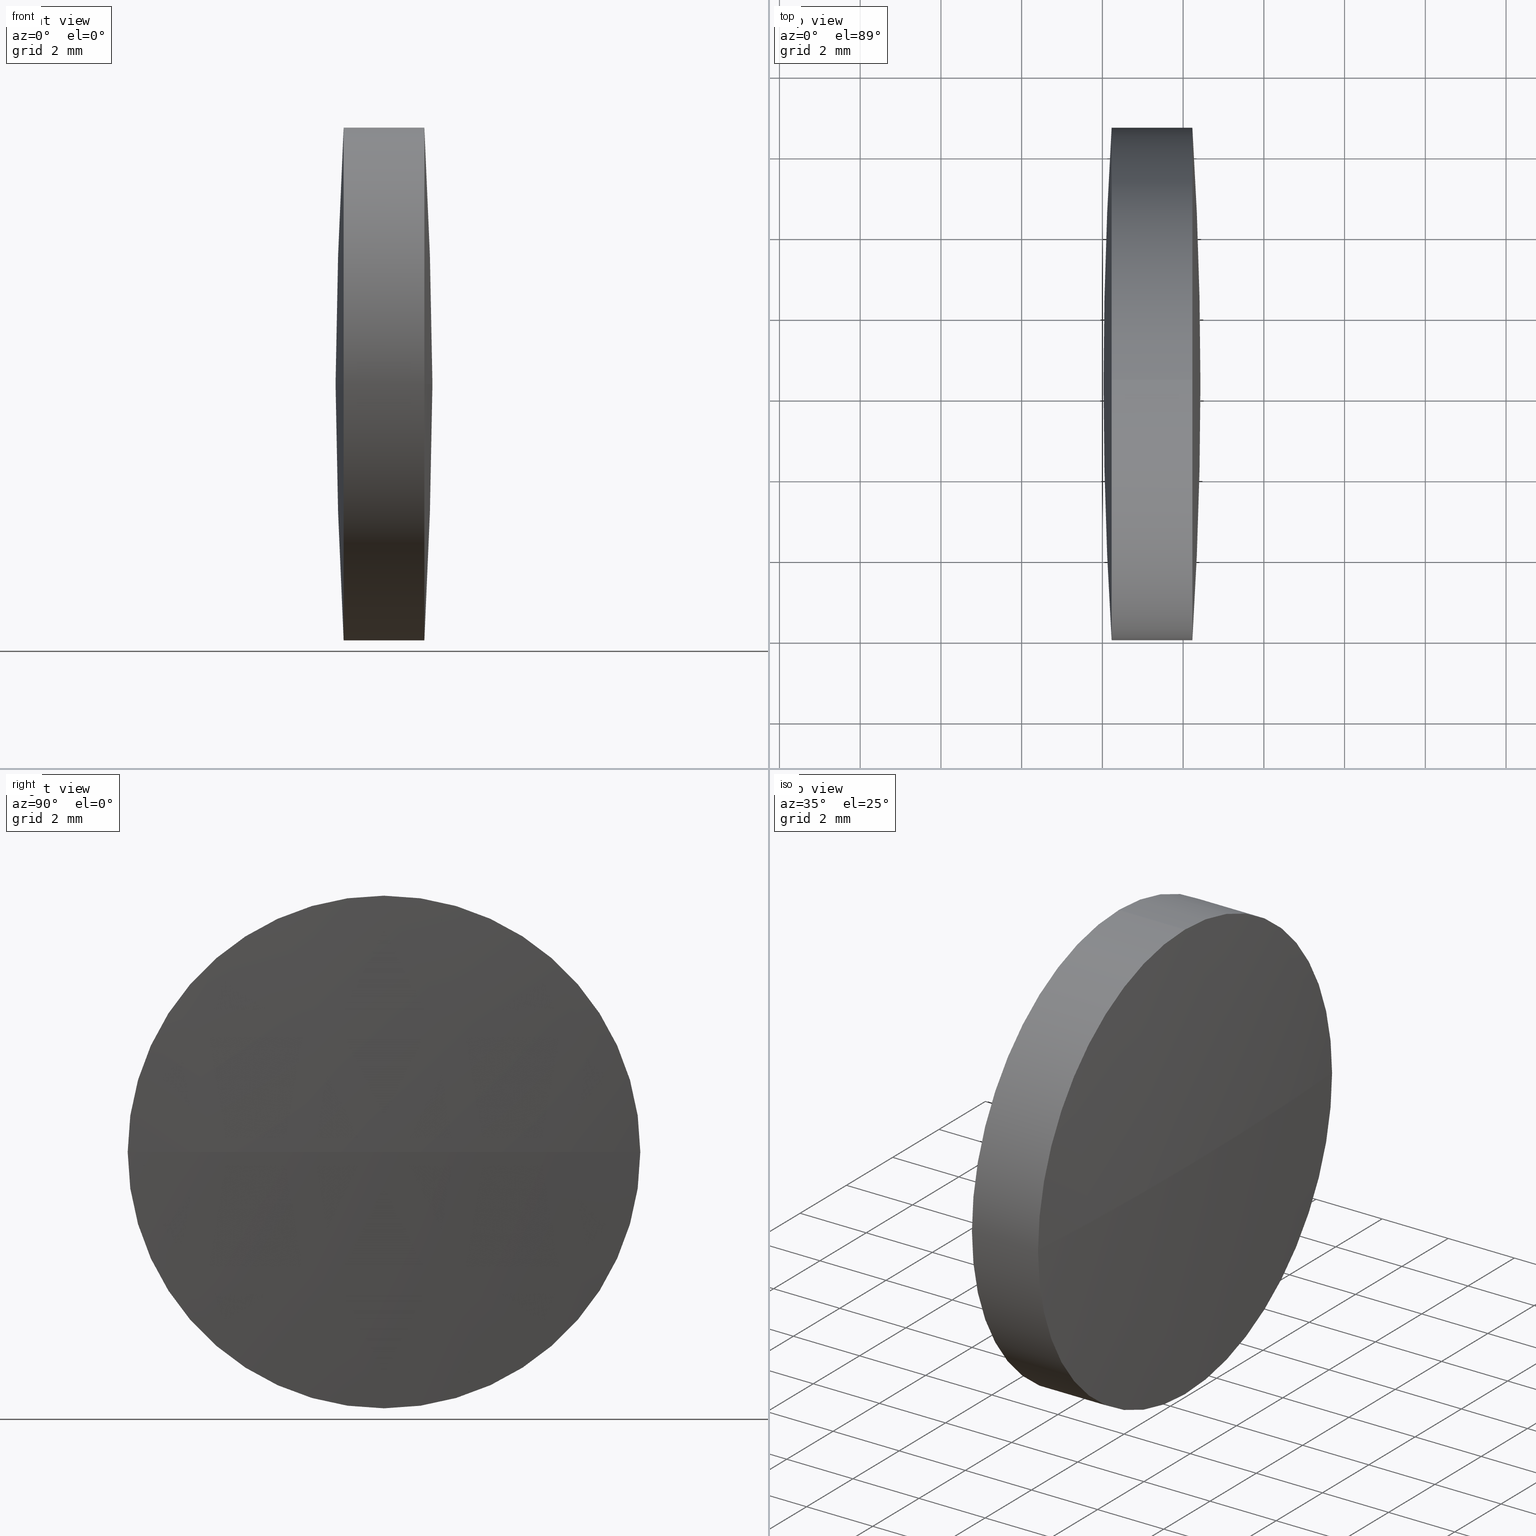
[diagram: canonical four-view strip — front | top / right | iso, engineering-drawing reading convention]
A machine part, canonical four-view strip (front | top / right | iso — engineering-drawing reading convention). The complete STEP part file that produces these views, byte-faithful:
ISO-10303-21;
HEADER;
FILE_DESCRIPTION (( 'STEP AP203' ),
    '1' );
FILE_NAME ('110154.STEP',
    '2019-07-09T01:43:57',
    ( '' ),
    ( '' ),
    'SwSTEP 2.0',
    'SolidWorks 2016',
    '' );
FILE_SCHEMA (( 'CONFIG_CONTROL_DESIGN' ));
ENDSEC;

DATA;
#1 = CC_DESIGN_DATE_AND_TIME_ASSIGNMENT ( #302, #37, ( #254 ) ) ;
#2 = ORIENTED_EDGE ( 'NONE', *, *, #91, .T. ) ;
#3 = DATE_TIME_ROLE ( 'classification_date' ) ;
#4 = PERSON_AND_ORGANIZATION ( #185, #274 ) ;
#5 = APPROVAL_DATE_TIME ( #36, #202 ) ;
#6 = PERSON_AND_ORGANIZATION_ROLE ( 'design_supplier' ) ;
#7 = AXIS2_PLACEMENT_3D ( 'NONE', #161, #297, #135 ) ;
#8 = SECURITY_CLASSIFICATION_LEVEL ( 'unclassified' ) ;
#9 = CC_DESIGN_APPROVAL ( #178, ( #320 ) ) ;
#10 = FACE_OUTER_BOUND ( 'NONE', #33, .T. ) ;
#11 = ORIENTED_EDGE ( 'NONE', *, *, #39, .F. ) ;
#12 = COORDINATED_UNIVERSAL_TIME_OFFSET ( 8, 0, .AHEAD. ) ;
#13 = COORDINATED_UNIVERSAL_TIME_OFFSET ( 8, 0, .AHEAD. ) ;
#14 = VERTEX_POINT ( 'NONE', #288 ) ;
#15 = DATE_AND_TIME ( #83, #305 ) ;
#16 = CARTESIAN_POINT ( 'NONE',  ( 42.22906260161698100, 24.30805651159239000, 6.349999999999997900 ) ) ;
#17 = LOCAL_TIME ( 9, 43, 57.00000000000000000, #217 ) ;
#18 = CALENDAR_DATE ( 2019, 9, 7 ) ;
#19 = VERTEX_POINT ( 'NONE', #55 ) ;
#20 = CARTESIAN_POINT ( 'NONE',  ( 44.22913117304555200, 30.65805651159237000, 7.776507174585586700E-016 ) ) ;
#21 = AXIS2_PLACEMENT_3D ( 'NONE', #295, #76, #160 ) ;
#22 = DIRECTION ( 'NONE',  ( 0.0000000000000000000, -1.000000000000000000, -1.224646799147353200E-016 ) ) ;
#23 = DIRECTION ( 'NONE',  ( 0.0000000000000000000, 0.0000000000000000000, 1.000000000000000000 ) ) ;
#24 = DIRECTION ( 'NONE',  ( -1.000000000000000000, -0.0000000000000000000, -0.0000000000000000000 ) ) ;
#25 = CC_DESIGN_APPROVAL ( #310, ( #114 ) ) ;
#26 = CARTESIAN_POINT ( 'NONE',  ( 0.0000000000000000000, 0.0000000000000000000, 0.0000000000000000000 ) ) ;
#27 = DIRECTION ( 'NONE',  ( -1.000000000000000000, -0.0000000000000000000, -0.0000000000000000000 ) ) ;
#28 = FACE_OUTER_BOUND ( 'NONE', #315, .T. ) ;
#29 = EDGE_CURVE ( 'NONE', #307, #259, #141, .T. ) ;
#30 = ADVANCED_BREP_SHAPE_REPRESENTATION ( '110154', ( #220, #296 ), #171 ) ;
#31 = APPROVAL_ROLE ( '' ) ;
#32 = APPROVAL_DATE_TIME ( #229, #65 ) ;
#33 = EDGE_LOOP ( 'NONE', ( #79, #96, #231, #329 ) ) ;
#34 = PERSON_AND_ORGANIZATION_ROLE ( 'design_supplier' ) ;
#35 = APPROVAL_DATE_TIME ( #61, #178 ) ;
#36 = DATE_AND_TIME ( #18, #168 ) ;
#37 = DATE_TIME_ROLE ( 'creation_date' ) ;
#38 = UNCERTAINTY_MEASURE_WITH_UNIT (LENGTH_MEASURE( 1.000000000000000100E-005 ), #223, 'distance_accuracy_value', 'NONE');
#39 = EDGE_CURVE ( 'NONE', #140, #50, #97, .T. ) ;
#40 = LOCAL_TIME ( 9, 43, 57.00000000000000000, #277 ) ;
#41 = LOCAL_TIME ( 9, 43, 57.00000000000000000, #283 ) ;
#42 = CALENDAR_DATE ( 2019, 9, 7 ) ;
#43 = ORIENTED_EDGE ( 'NONE', *, *, #91, .F. ) ;
#44 = ADVANCED_FACE ( 'NONE', ( #28 ), #64, .T. ) ;
#45 = AXIS2_PLACEMENT_3D ( 'NONE', #104, #189, #338 ) ;
#46 = PERSON_AND_ORGANIZATION ( #185, #274 ) ;
#47 = PRODUCT_RELATED_PRODUCT_CATEGORY ( 'detail', '', ( #133 ) ) ;
#48 = EDGE_CURVE ( 'NONE', #14, #333, #330, .T. ) ;
#49 = DIRECTION ( 'NONE',  ( -1.000000000000000000, -0.0000000000000000000, -0.0000000000000000000 ) ) ;
#50 = VERTEX_POINT ( 'NONE', #16 ) ;
#51 = CC_DESIGN_SECURITY_CLASSIFICATION ( #114, ( #192 ) ) ;
#52 = CARTESIAN_POINT ( 'NONE',  ( 42.22906260161698100, 24.30805651159239000, 0.0000000000000000000 ) ) ;
#53 = DATE_AND_TIME ( #256, #147 ) ;
#54 = CARTESIAN_POINT ( 'NONE',  ( 39.65270067541857900, 24.30805651159239000, 6.349999999999997900 ) ) ;
#55 = CARTESIAN_POINT ( 'NONE',  ( 44.22913117304555200, 24.30805651159239000, 6.349999999999997900 ) ) ;
#56 = DIRECTION ( 'NONE',  ( 0.0000000000000000000, 0.0000000000000000000, 1.000000000000000000 ) ) ;
#57 = DIRECTION ( 'NONE',  ( 0.0000000000000000000, 1.000000000000000000, 0.0000000000000000000 ) ) ;
#58 = COORDINATED_UNIVERSAL_TIME_OFFSET ( 8, 0, .AHEAD. ) ;
#59 = DIRECTION ( 'NONE',  ( 0.0000000000000000000, 0.0000000000000000000, 1.000000000000000000 ) ) ;
#60 = EDGE_CURVE ( 'NONE', #140, #333, #198, .T. ) ;
#61 = DATE_AND_TIME ( #123, #209 ) ;
#62 = CARTESIAN_POINT ( 'NONE',  ( 39.65270067541857900, 24.30805651159239000, -6.349999999999997900 ) ) ;
#63 = CYLINDRICAL_SURFACE ( 'NONE', #264, 6.349999999999997900 ) ;
#64 = SPHERICAL_SURFACE ( 'NONE', #230, 100.9302094054652900 ) ;
#65 = APPROVAL ( #111, 'δָ��' ) ;
#66 = ADVANCED_FACE ( 'NONE', ( #77 ), #235, .T. ) ;
#67 = AXIS2_PLACEMENT_3D ( 'NONE', #155, #129, #157 ) ;
#68 = CC_DESIGN_APPROVAL ( #328, ( #317 ) ) ;
#69 = CIRCLE ( 'NONE', #196, 6.349999999999997900 ) ;
#70 = CARTESIAN_POINT ( 'NONE',  ( 0.0000000000000000000, 0.0000000000000000000, 0.0000000000000000000 ) ) ;
#71 = CARTESIAN_POINT ( 'NONE',  ( 42.22906260161698800, 17.95805651159242400, -7.776507174585767100E-016 ) ) ;
#72 = CC_DESIGN_PERSON_AND_ORGANIZATION_ASSIGNMENT ( #81, #144, ( #114 ) ) ;
#73 = APPLICATION_CONTEXT ( 'configuration controlled 3d designs of mechanical parts and assemblies' ) ;
#74 = PERSON_AND_ORGANIZATION ( #185, #274 ) ;
#75 = APPLICATION_PROTOCOL_DEFINITION ( 'international standard', 'config_control_design', 1994, #137 ) ;
#76 = DIRECTION ( 'NONE',  ( 0.0000000000000000000, 0.0000000000000000000, -1.000000000000000000 ) ) ;
#77 = FACE_OUTER_BOUND ( 'NONE', #116, .T. ) ;
#78 = APPROVAL_PERSON_ORGANIZATION ( #156, #328, #31 ) ;
#79 = ORIENTED_EDGE ( 'NONE', *, *, #175, .T. ) ;
#80 = MECHANICAL_CONTEXT ( 'NONE', #243, 'mechanical' ) ;
#81 = PERSON_AND_ORGANIZATION ( #185, #274 ) ;
#82 = AXIS2_PLACEMENT_3D ( 'NONE', #132, #191, #57 ) ;
#83 = CALENDAR_DATE ( 2019, 9, 7 ) ;
#84 = FACE_OUTER_BOUND ( 'NONE', #107, .T. ) ;
#85 = CC_DESIGN_DATE_AND_TIME_ASSIGNMENT ( #260, #167, ( #237 ) ) ;
#86 = ORIENTED_EDGE ( 'NONE', *, *, #267, .F. ) ;
#87 = ADVANCED_FACE ( 'NONE', ( #84 ), #251, .T. ) ;
#88 = PERSON_AND_ORGANIZATION ( #185, #274 ) ;
#89 = APPROVAL ( #270, 'δָ��' ) ;
#90 = ORIENTED_EDGE ( 'NONE', *, *, #187, .F. ) ;
#91 = EDGE_CURVE ( 'NONE', #184, #19, #227, .T. ) ;
#92 = CALENDAR_DATE ( 2019, 9, 7 ) ;
#93 = COORDINATED_UNIVERSAL_TIME_OFFSET ( 8, 0, .AHEAD. ) ;
#94 = CARTESIAN_POINT ( 'NONE',  ( 142.9593195785108400, 24.30805651159248600, 0.0000000000000000000 ) ) ;
#95 = CC_DESIGN_PERSON_AND_ORGANIZATION_ASSIGNMENT ( #308, #112, ( #237 ) ) ;
#96 = ORIENTED_EDGE ( 'NONE', *, *, #101, .T. ) ;
#97 = CIRCLE ( 'NONE', #154, 6.349999999999997900 ) ;
#98 = DIRECTION ( 'NONE',  ( -0.0000000000000000000, 0.0000000000000000000, 1.000000000000000000 ) ) ;
#99 = CARTESIAN_POINT ( 'NONE',  ( 42.22906260161698100, 24.30805651159239000, 0.0000000000000000000 ) ) ;
#100 = CARTESIAN_POINT ( 'NONE',  ( 44.22913117304555200, 24.30805651159239000, -6.349999999999997900 ) ) ;
#101 = EDGE_CURVE ( 'NONE', #176, #140, #128, .T. ) ;
#102 = DIRECTION ( 'NONE',  ( 0.0000000000000000000, 0.0000000000000000000, 1.000000000000000000 ) ) ;
#103 = CC_DESIGN_PERSON_AND_ORGANIZATION_ASSIGNMENT ( #238, #300, ( #254 ) ) ;
#104 = CARTESIAN_POINT ( 'NONE',  ( 44.22913117304555200, 24.30805651159239000, 0.0000000000000000000 ) ) ;
#105 = LOCAL_TIME ( 9, 43, 57.00000000000000000, #211 ) ;
#106 = ORIENTED_EDGE ( 'NONE', *, *, #267, .T. ) ;
#107 = EDGE_LOOP ( 'NONE', ( #233, #106, #206, #90 ) ) ;
#108 = APPROVAL_STATUS ( 'not_yet_approved' ) ;
#109 = AXIS2_PLACEMENT_3D ( 'NONE', #26, #134, #272 ) ;
#110 = APPROVAL_PERSON_ORGANIZATION ( #278, #310, #201 ) ;
#111 = APPROVAL_STATUS ( 'not_yet_approved' ) ;
#112 = PERSON_AND_ORGANIZATION_ROLE ( 'creator' ) ;
#113 = CIRCLE ( 'NONE', #214, 6.349999999999997900 ) ;
#114 = SECURITY_CLASSIFICATION ( '', '', #8 ) ;
#115 = EDGE_CURVE ( 'NONE', #50, #14, #69, .T. ) ;
#116 = EDGE_LOOP ( 'NONE', ( #86, #213, #239, #43 ) ) ;
#117 = LINE ( 'NONE', #54, #331 ) ;
#118 = CC_DESIGN_PERSON_AND_ORGANIZATION_ASSIGNMENT ( #253, #34, ( #317 ) ) ;
#119 = ADVANCED_FACE ( 'NONE', ( #10 ), #289, .T. ) ;
#120 = APPROVAL_DATE_TIME ( #199, #328 ) ;
#121 = APPROVAL_PERSON_ORGANIZATION ( #262, #89, #138 ) ;
#122 = DESIGN_CONTEXT ( 'detailed design', #172, 'design' ) ;
#123 = CALENDAR_DATE ( 2019, 9, 7 ) ;
#124 = APPROVAL_PERSON_ORGANIZATION ( #4, #65, #323 ) ;
#125 = DIRECTION ( 'NONE',  ( 0.0000000000000000000, 1.224646799147353200E-016, -1.000000000000000000 ) ) ;
#126 = CARTESIAN_POINT ( 'NONE',  ( -56.50112580384402600, 24.30805651159245400, 0.0000000000000000000 ) ) ;
#127 = ORIENTED_EDGE ( 'NONE', *, *, #115, .F. ) ;
#128 = CIRCLE ( 'NONE', #242, 6.349999999999997900 ) ;
#129 = DIRECTION ( 'NONE',  ( 0.0000000000000000000, 0.0000000000000000000, 1.000000000000000000 ) ) ;
#130 = CARTESIAN_POINT ( 'NONE',  ( 42.02911017304555900, 24.30805651159249300, 0.0000000000000000000 ) ) ;
#131 = EDGE_LOOP ( 'NONE', ( #303, #273, #2, #169, #11, #174 ) ) ;
#132 = CARTESIAN_POINT ( 'NONE',  ( 142.9593195785108400, 24.30805651159248600, 0.0000000000000000000 ) ) ;
#133 = PRODUCT ( '110154', '110154', '', ( #298 ) ) ;
#134 = DIRECTION ( 'NONE',  ( 0.0000000000000000000, 0.0000000000000000000, 1.000000000000000000 ) ) ;
#135 = DIRECTION ( 'NONE',  ( 0.0000000000000000000, 0.0000000000000000000, 1.000000000000000000 ) ) ;
#136 = CC_DESIGN_APPROVAL ( #65, ( #254 ) ) ;
#137 = APPLICATION_CONTEXT ( 'configuration controlled 3d designs of mechanical parts and assemblies' ) ;
#138 = APPROVAL_ROLE ( '' ) ;
#139 = APPROVAL_ROLE ( '' ) ;
#140 = VERTEX_POINT ( 'NONE', #71 ) ;
#141 = CIRCLE ( 'NONE', #208, 100.9302094054610100 ) ;
#142 = CALENDAR_DATE ( 2019, 9, 7 ) ;
#143 = DATE_TIME_ROLE ( 'classification_date' ) ;
#144 = PERSON_AND_ORGANIZATION_ROLE ( 'classification_officer' ) ;
#145 = PERSON_AND_ORGANIZATION ( #185, #274 ) ;
#146 = AXIS2_PLACEMENT_3D ( 'NONE', #344, #162, #23 ) ;
#147 = LOCAL_TIME ( 9, 43, 57.00000000000000000, #306 ) ;
#148 = LOCAL_TIME ( 9, 43, 57.00000000000000000, #13 ) ;
#149 = ORIENTED_EDGE ( 'NONE', *, *, #48, .T. ) ;
#150 = APPROVAL_PERSON_ORGANIZATION ( #248, #202, #139 ) ;
#151 = CC_DESIGN_PERSON_AND_ORGANIZATION_ASSIGNMENT ( #46, #275, ( #317 ) ) ;
#152 = CIRCLE ( 'NONE', #146, 6.349999999999997900 ) ;
#153 = DIRECTION ( 'NONE',  ( 1.000000000000000000, 0.0000000000000000000, 0.0000000000000000000 ) ) ;
#154 = AXIS2_PLACEMENT_3D ( 'NONE', #52, #49, #312 ) ;
#155 = CARTESIAN_POINT ( 'NONE',  ( -56.50112580384402600, 24.30805651159245400, 0.0000000000000000000 ) ) ;
#156 = PERSON_AND_ORGANIZATION ( #185, #274 ) ;
#157 = DIRECTION ( 'NONE',  ( 0.0000000000000000000, -1.000000000000000000, 0.0000000000000000000 ) ) ;
#158 = PRODUCT_RELATED_PRODUCT_CATEGORY ( 'detail', '', ( #291 ) ) ;
#159 = ORIENTED_EDGE ( 'NONE', *, *, #115, .T. ) ;
#160 = DIRECTION ( 'NONE',  ( -1.000000000000000000, 0.0000000000000000000, 0.0000000000000000000 ) ) ;
#161 = CARTESIAN_POINT ( 'NONE',  ( 44.22913117304555200, 24.30805651159239000, 0.0000000000000000000 ) ) ;
#162 = DIRECTION ( 'NONE',  ( -1.000000000000000000, -0.0000000000000000000, -0.0000000000000000000 ) ) ;
#163 = CC_DESIGN_PERSON_AND_ORGANIZATION_ASSIGNMENT ( #204, #280, ( #291 ) ) ;
#164 = ORIENTED_EDGE ( 'NONE', *, *, #60, .F. ) ;
#165 = CARTESIAN_POINT ( 'NONE',  ( 39.65270067541857900, 24.30805651159239000, 0.0000000000000000000 ) ) ;
#166 = CC_DESIGN_PERSON_AND_ORGANIZATION_ASSIGNMENT ( #88, #6, ( #192 ) ) ;
#167 = DATE_TIME_ROLE ( 'creation_date' ) ;
#168 = LOCAL_TIME ( 9, 43, 57.00000000000000000, #93 ) ;
#169 = ORIENTED_EDGE ( 'NONE', *, *, #203, .T. ) ;
#170 = APPROVAL_STATUS ( 'not_yet_approved' ) ;
#171 =( GEOMETRIC_REPRESENTATION_CONTEXT ( 3 ) GLOBAL_UNCERTAINTY_ASSIGNED_CONTEXT ( ( #38 ) ) GLOBAL_UNIT_ASSIGNED_CONTEXT ( ( #223, #225, #186 ) ) REPRESENTATION_CONTEXT ( 'NONE', 'WORKASPACE' ) );
#172 = APPLICATION_CONTEXT ( 'configuration controlled 3d designs of mechanical parts and assemblies' ) ;
#173 = CC_DESIGN_APPROVAL ( #89, ( #237 ) ) ;
#174 = ORIENTED_EDGE ( 'NONE', *, *, #101, .F. ) ;
#175 = EDGE_CURVE ( 'NONE', #14, #176, #113, .T. ) ;
#176 = VERTEX_POINT ( 'NONE', #313 ) ;
#177 = ADVANCED_FACE ( 'NONE', ( #265 ), #63, .T. ) ;
#178 = APPROVAL ( #325, 'δָ��' ) ;
#179 = PRODUCT_DEFINITION_SHAPE ( 'NONE', 'NONE',  #254 ) ;
#180 = PERSON_AND_ORGANIZATION ( #185, #274 ) ;
#181 = COORDINATED_UNIVERSAL_TIME_OFFSET ( 8, 0, .AHEAD. ) ;
#182 = CC_DESIGN_PERSON_AND_ORGANIZATION_ASSIGNMENT ( #180, #276, ( #320 ) ) ;
#183 = FACE_OUTER_BOUND ( 'NONE', #131, .T. ) ;
#184 = VERTEX_POINT ( 'NONE', #194 ) ;
#185 = PERSON ( 'δָ��', 'δָ��', 'δָ��', ('δָ��'), ('δָ��'), ('δָ��') ) ;
#186 =( NAMED_UNIT ( * ) SI_UNIT ( $, .STERADIAN. ) SOLID_ANGLE_UNIT ( ) );
#187 = EDGE_CURVE ( 'NONE', #259, #314, #152, .T. ) ;
#188 = DIRECTION ( 'NONE',  ( -1.000000000000000000, -0.0000000000000000000, -0.0000000000000000000 ) ) ;
#189 = DIRECTION ( 'NONE',  ( -1.000000000000000000, -0.0000000000000000000, -0.0000000000000000000 ) ) ;
#190 = APPROVAL_DATE_TIME ( #15, #89 ) ;
#191 = DIRECTION ( 'NONE',  ( -0.0000000000000000000, 0.0000000000000000000, -1.000000000000000000 ) ) ;
#192 = PRODUCT_DEFINITION_FORMATION_WITH_SPECIFIED_SOURCE ( '�κ�', '', #133, .NOT_KNOWN. ) ;
#193 = DIRECTION ( 'NONE',  ( -1.000000000000000000, -0.0000000000000000000, -0.0000000000000000000 ) ) ;
#194 = CARTESIAN_POINT ( 'NONE',  ( 44.22913117304555200, 17.95805651159247800, 0.0000000000000000000 ) ) ;
#195 = APPLICATION_PROTOCOL_DEFINITION ( 'international standard', 'config_control_design', 1994, #172 ) ;
#196 = AXIS2_PLACEMENT_3D ( 'NONE', #268, #24, #316 ) ;
#197 = ORIENTED_EDGE ( 'NONE', *, *, #203, .F. ) ;
#198 = CIRCLE ( 'NONE', #226, 100.9302094054652900 ) ;
#199 = DATE_AND_TIME ( #326, #40 ) ;
#200 = LOCAL_TIME ( 9, 43, 57.00000000000000000, #181 ) ;
#201 = APPROVAL_ROLE ( '' ) ;
#202 = APPROVAL ( #170, 'δָ��' ) ;
#203 = EDGE_CURVE ( 'NONE', #19, #50, #117, .T. ) ;
#204 = PERSON_AND_ORGANIZATION ( #185, #274 ) ;
#205 = CC_DESIGN_APPROVAL ( #202, ( #192 ) ) ;
#206 = ORIENTED_EDGE ( 'NONE', *, *, #286, .F. ) ;
#207 = LINE ( 'NONE', #62, #309 ) ;
#208 = AXIS2_PLACEMENT_3D ( 'NONE', #126, #290, #22 ) ;
#209 = LOCAL_TIME ( 9, 43, 57.00000000000000000, #12 ) ;
#210 = CC_DESIGN_SECURITY_CLASSIFICATION ( #320, ( #317 ) ) ;
#211 = COORDINATED_UNIVERSAL_TIME_OFFSET ( 8, 0, .AHEAD. ) ;
#212 = DIRECTION ( 'NONE',  ( 0.0000000000000000000, -1.000000000000000000, 0.0000000000000000000 ) ) ;
#213 = ORIENTED_EDGE ( 'NONE', *, *, #29, .T. ) ;
#214 = AXIS2_PLACEMENT_3D ( 'NONE', #99, #219, #336 ) ;
#215 = CARTESIAN_POINT ( 'NONE',  ( 142.9593195785108400, 24.30805651159248600, 0.0000000000000000000 ) ) ;
#216 = DIRECTION ( 'NONE',  ( 0.0000000000000000000, 0.0000000000000000000, 1.000000000000000000 ) ) ;
#217 = COORDINATED_UNIVERSAL_TIME_OFFSET ( 8, 0, .AHEAD. ) ;
#218 = CALENDAR_DATE ( 2019, 9, 7 ) ;
#219 = DIRECTION ( 'NONE',  ( -1.000000000000000000, -0.0000000000000000000, -0.0000000000000000000 ) ) ;
#220 = MANIFOLD_SOLID_BREP ( '��ת1', #339 ) ;
#221 = DIRECTION ( 'NONE',  ( 0.0000000000000000000, 1.000000000000000000, 0.0000000000000000000 ) ) ;
#222 = CC_DESIGN_PERSON_AND_ORGANIZATION_ASSIGNMENT ( #74, #321, ( #192 ) ) ;
#223 =( LENGTH_UNIT ( ) NAMED_UNIT ( * ) SI_UNIT ( .MILLI., .METRE. ) );
#224 = DIRECTION ( 'NONE',  ( -1.000000000000000000, -0.0000000000000000000, -0.0000000000000000000 ) ) ;
#225 =( NAMED_UNIT ( * ) PLANE_ANGLE_UNIT ( ) SI_UNIT ( $, .RADIAN. ) );
#226 = AXIS2_PLACEMENT_3D ( 'NONE', #94, #125, #337 ) ;
#227 = CIRCLE ( 'NONE', #7, 6.349999999999997900 ) ;
#228 = SECURITY_CLASSIFICATION_LEVEL ( 'unclassified' ) ;
#229 = DATE_AND_TIME ( #92, #41 ) ;
#230 = AXIS2_PLACEMENT_3D ( 'NONE', #215, #240, #221 ) ;
#231 = ORIENTED_EDGE ( 'NONE', *, *, #60, .T. ) ;
#232 = AXIS2_PLACEMENT_3D ( 'NONE', #246, #193, #102 ) ;
#233 = ORIENTED_EDGE ( 'NONE', *, *, #29, .F. ) ;
#234 = ADVANCED_FACE ( 'NONE', ( #183 ), #340, .T. ) ;
#235 = SPHERICAL_SURFACE ( 'NONE', #281, 100.9302094054610100 ) ;
#236 = CC_DESIGN_DATE_AND_TIME_ASSIGNMENT ( #335, #3, ( #114 ) ) ;
#237 = PRODUCT_DEFINITION ( 'δ֪', '', #192, #282 ) ;
#238 = PERSON_AND_ORGANIZATION ( #185, #274 ) ;
#239 = ORIENTED_EDGE ( 'NONE', *, *, #249, .F. ) ;
#240 = DIRECTION ( 'NONE',  ( -0.0000000000000000000, 0.0000000000000000000, -1.000000000000000000 ) ) ;
#241 = DIRECTION ( 'NONE',  ( -1.000000000000000000, -0.0000000000000000000, -0.0000000000000000000 ) ) ;
#242 = AXIS2_PLACEMENT_3D ( 'NONE', #341, #224, #343 ) ;
#243 = APPLICATION_CONTEXT ( 'configuration controlled 3d designs of mechanical parts and assemblies' ) ;
#244 = CIRCLE ( 'NONE', #21, 100.9302094054610100 ) ;
#245 = PERSON_AND_ORGANIZATION_ROLE ( 'design_owner' ) ;
#246 = CARTESIAN_POINT ( 'NONE',  ( 44.22913117304555200, 24.30805651159239000, 0.0000000000000000000 ) ) ;
#247 = PERSON_AND_ORGANIZATION ( #185, #274 ) ;
#248 = PERSON_AND_ORGANIZATION ( #185, #274 ) ;
#249 = EDGE_CURVE ( 'NONE', #19, #259, #258, .T. ) ;
#250 = ORIENTED_EDGE ( 'NONE', *, *, #175, .F. ) ;
#251 = SPHERICAL_SURFACE ( 'NONE', #67, 100.9302094054610100 ) ;
#252 = EDGE_CURVE ( 'NONE', #314, #176, #207, .T. ) ;
#253 = PERSON_AND_ORGANIZATION ( #185, #274 ) ;
#254 = PRODUCT_DEFINITION ( 'δ֪', '', #317, #122 ) ;
#255 = PRODUCT_DEFINITION_SHAPE ( 'NONE', 'NONE',  #237 ) ;
#256 = CALENDAR_DATE ( 2019, 9, 7 ) ;
#257 = ORIENTED_EDGE ( 'NONE', *, *, #249, .T. ) ;
#258 = CIRCLE ( 'NONE', #232, 6.349999999999997900 ) ;
#259 = VERTEX_POINT ( 'NONE', #20 ) ;
#260 = DATE_AND_TIME ( #292, #200 ) ;
#261 = CC_DESIGN_PERSON_AND_ORGANIZATION_ASSIGNMENT ( #145, #245, ( #133 ) ) ;
#262 = PERSON_AND_ORGANIZATION ( #185, #274 ) ;
#263 = ORIENTED_EDGE ( 'NONE', *, *, #252, .T. ) ;
#264 = AXIS2_PLACEMENT_3D ( 'NONE', #294, #188, #319 ) ;
#265 = FACE_OUTER_BOUND ( 'NONE', #332, .T. ) ;
#266 = CARTESIAN_POINT ( 'NONE',  ( 142.9593195785108400, 24.30805651159248600, 0.0000000000000000000 ) ) ;
#267 = EDGE_CURVE ( 'NONE', #307, #184, #244, .T. ) ;
#268 = CARTESIAN_POINT ( 'NONE',  ( 42.22906260161698100, 24.30805651159239000, 0.0000000000000000000 ) ) ;
#269 = APPLICATION_PROTOCOL_DEFINITION ( 'international standard', 'config_control_design', 1994, #73 ) ;
#270 = APPROVAL_STATUS ( 'not_yet_approved' ) ;
#271 = SHAPE_DEFINITION_REPRESENTATION ( #179, #30 ) ;
#272 = DIRECTION ( 'NONE',  ( 1.000000000000000000, 0.0000000000000000000, 0.0000000000000000000 ) ) ;
#273 = ORIENTED_EDGE ( 'NONE', *, *, #286, .T. ) ;
#274 = ORGANIZATION ( 'δָ��', 'δָ��', '' ) ;
#275 = PERSON_AND_ORGANIZATION_ROLE ( 'creator' ) ;
#276 = PERSON_AND_ORGANIZATION_ROLE ( 'classification_officer' ) ;
#277 = COORDINATED_UNIVERSAL_TIME_OFFSET ( 8, 0, .AHEAD. ) ;
#278 = PERSON_AND_ORGANIZATION ( #185, #274 ) ;
#279 = APPROVAL_ROLE ( '' ) ;
#280 = PERSON_AND_ORGANIZATION_ROLE ( 'design_owner' ) ;
#281 = AXIS2_PLACEMENT_3D ( 'NONE', #293, #216, #212 ) ;
#282 = DESIGN_CONTEXT ( 'detailed design', #137, 'design' ) ;
#283 = COORDINATED_UNIVERSAL_TIME_OFFSET ( 8, 0, .AHEAD. ) ;
#284 = ORIENTED_EDGE ( 'NONE', *, *, #39, .T. ) ;
#285 = AXIS2_PLACEMENT_3D ( 'NONE', #266, #98, #153 ) ;
#286 = EDGE_CURVE ( 'NONE', #314, #184, #287, .T. ) ;
#287 = CIRCLE ( 'NONE', #45, 6.349999999999997900 ) ;
#288 = CARTESIAN_POINT ( 'NONE',  ( 42.22906260161698800, 30.65805651159245200, 0.0000000000000000000 ) ) ;
#289 = SPHERICAL_SURFACE ( 'NONE', #82, 100.9302094054652900 ) ;
#290 = DIRECTION ( 'NONE',  ( 0.0000000000000000000, -1.224646799147353200E-016, 1.000000000000000000 ) ) ;
#291 = PRODUCT ( '110154', '110154', '', ( #80 ) ) ;
#292 = CALENDAR_DATE ( 2019, 9, 7 ) ;
#293 = CARTESIAN_POINT ( 'NONE',  ( -56.50112580384402600, 24.30805651159245400, 0.0000000000000000000 ) ) ;
#294 = CARTESIAN_POINT ( 'NONE',  ( 39.65270067541857900, 24.30805651159239000, 0.0000000000000000000 ) ) ;
#295 = CARTESIAN_POINT ( 'NONE',  ( -56.50112580384402600, 24.30805651159245400, 0.0000000000000000000 ) ) ;
#296 = AXIS2_PLACEMENT_3D ( 'NONE', #70, #59, #318 ) ;
#297 = DIRECTION ( 'NONE',  ( -1.000000000000000000, -0.0000000000000000000, -0.0000000000000000000 ) ) ;
#298 = MECHANICAL_CONTEXT ( 'NONE', #73, 'mechanical' ) ;
#299 = CARTESIAN_POINT ( 'NONE',  ( 44.42908360161699500, 24.30805651159244700, 0.0000000000000000000 ) ) ;
#300 = PERSON_AND_ORGANIZATION_ROLE ( 'creator' ) ;
#301 = AXIS2_PLACEMENT_3D ( 'NONE', #165, #342, #56 ) ;
#302 = DATE_AND_TIME ( #142, #17 ) ;
#303 = ORIENTED_EDGE ( 'NONE', *, *, #252, .F. ) ;
#304 = APPLICATION_PROTOCOL_DEFINITION ( 'international standard', 'config_control_design', 1994, #243 ) ;
#305 = LOCAL_TIME ( 9, 43, 57.00000000000000000, #58 ) ;
#306 = COORDINATED_UNIVERSAL_TIME_OFFSET ( 8, 0, .AHEAD. ) ;
#307 = VERTEX_POINT ( 'NONE', #299 ) ;
#308 = PERSON_AND_ORGANIZATION ( #185, #274 ) ;
#309 = VECTOR ( 'NONE', #27, 1000.000000000000000 ) ;
#310 = APPROVAL ( #108, 'δָ��' ) ;
#311 = DATE_AND_TIME ( #42, #105 ) ;
#312 = DIRECTION ( 'NONE',  ( 0.0000000000000000000, 0.0000000000000000000, 1.000000000000000000 ) ) ;
#313 = CARTESIAN_POINT ( 'NONE',  ( 42.22906260161698100, 24.30805651159239000, -6.349999999999997900 ) ) ;
#314 = VERTEX_POINT ( 'NONE', #100 ) ;
#315 = EDGE_LOOP ( 'NONE', ( #164, #284, #159, #149 ) ) ;
#316 = DIRECTION ( 'NONE',  ( 0.0000000000000000000, 0.0000000000000000000, 1.000000000000000000 ) ) ;
#317 = PRODUCT_DEFINITION_FORMATION_WITH_SPECIFIED_SOURCE ( '�κ�', '', #291, .NOT_KNOWN. ) ;
#318 = DIRECTION ( 'NONE',  ( 1.000000000000000000, 0.0000000000000000000, 0.0000000000000000000 ) ) ;
#319 = DIRECTION ( 'NONE',  ( 0.0000000000000000000, 0.0000000000000000000, 1.000000000000000000 ) ) ;
#320 = SECURITY_CLASSIFICATION ( '', '', #228 ) ;
#321 = PERSON_AND_ORGANIZATION_ROLE ( 'creator' ) ;
#322 = ORIENTED_EDGE ( 'NONE', *, *, #187, .T. ) ;
#323 = APPROVAL_ROLE ( '' ) ;
#324 = APPROVAL_STATUS ( 'not_yet_approved' ) ;
#325 = APPROVAL_STATUS ( 'not_yet_approved' ) ;
#326 = CALENDAR_DATE ( 2019, 9, 7 ) ;
#327 = APPROVAL_PERSON_ORGANIZATION ( #247, #178, #279 ) ;
#328 = APPROVAL ( #324, 'δָ��' ) ;
#329 = ORIENTED_EDGE ( 'NONE', *, *, #48, .F. ) ;
#330 = CIRCLE ( 'NONE', #285, 100.9302094054652900 ) ;
#331 = VECTOR ( 'NONE', #241, 1000.000000000000000 ) ;
#332 = EDGE_LOOP ( 'NONE', ( #322, #263, #250, #127, #197, #257 ) ) ;
#333 = VERTEX_POINT ( 'NONE', #130 ) ;
#334 = CC_DESIGN_DATE_AND_TIME_ASSIGNMENT ( #311, #143, ( #320 ) ) ;
#335 = DATE_AND_TIME ( #218, #148 ) ;
#336 = DIRECTION ( 'NONE',  ( 0.0000000000000000000, 0.0000000000000000000, 1.000000000000000000 ) ) ;
#337 = DIRECTION ( 'NONE',  ( 0.0000000000000000000, 1.000000000000000000, 1.224646799147353200E-016 ) ) ;
#338 = DIRECTION ( 'NONE',  ( 0.0000000000000000000, 0.0000000000000000000, 1.000000000000000000 ) ) ;
#339 = CLOSED_SHELL ( 'NONE', ( #177, #66, #119, #44, #87, #234 ) ) ;
#340 = CYLINDRICAL_SURFACE ( 'NONE', #301, 6.349999999999997900 ) ;
#341 = CARTESIAN_POINT ( 'NONE',  ( 42.22906260161698100, 24.30805651159239000, 0.0000000000000000000 ) ) ;
#342 = DIRECTION ( 'NONE',  ( -1.000000000000000000, -0.0000000000000000000, -0.0000000000000000000 ) ) ;
#343 = DIRECTION ( 'NONE',  ( 0.0000000000000000000, 0.0000000000000000000, 1.000000000000000000 ) ) ;
#344 = CARTESIAN_POINT ( 'NONE',  ( 44.22913117304555200, 24.30805651159239000, 0.0000000000000000000 ) ) ;
#345 = APPROVAL_DATE_TIME ( #53, #310 ) ;
ENDSEC;
END-ISO-10303-21;
